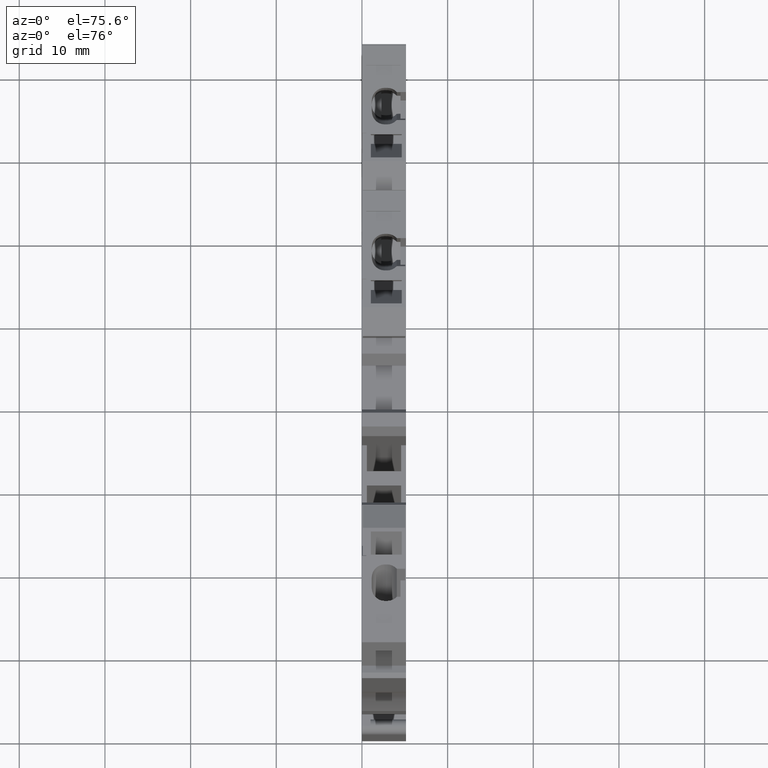
[diagram: clean part render]
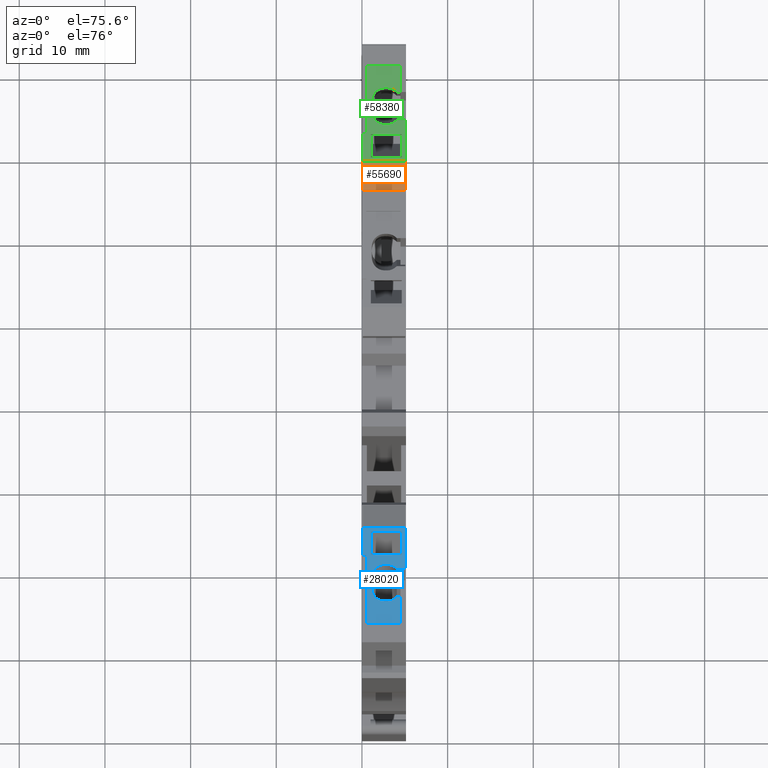
[diagram: same view with three faces highlighted in distinct colors, each labeled with its STEP entity id]
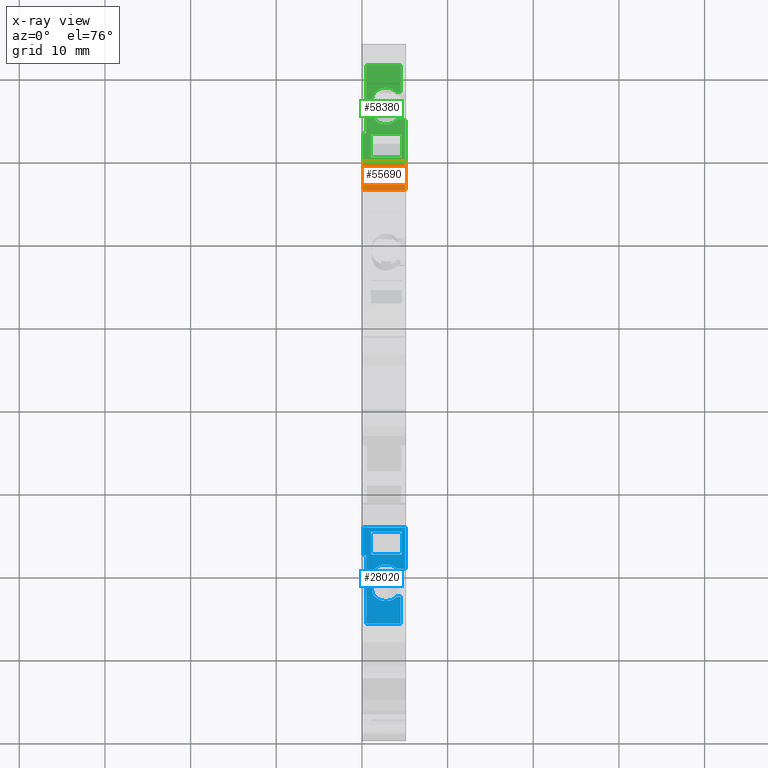
[diagram: x-ray of the same camera — body ghosted, the three highlighted faces saturated]
A machine part, auxiliary view with three faces highlighted in distinct colors.
The next image is the same camera in x-ray (body ghosted, the three faces saturated) — at least one of them is partly hidden behind the body in this view.
Their STEP definitions:

[orange] entity #55690 — the highlighted planar face has unit normal (0, -0.4472, 0.8944).
#54780=CARTESIAN_POINT('',(60.0725221506156,37.5329237893088,
-0.100000000070883));
#54790=VERTEX_POINT('',#54780);
#54870=CARTESIAN_POINT('',(60.0725221506163,37.5329237893103,
-5.05000000007089));
#54880=VERTEX_POINT('',#54870);
#54910=CARTESIAN_POINT('',(60.0725221506156,37.5329237893088,
-7.0857260014668E-11));
#54920=DIRECTION('',(-1.33406774891479E-13,-3.06050203357693E-13,1.));
#54930=VECTOR('',#54920,1.);
#54940=LINE('',#54910,#54930);
#54950=EDGE_CURVE('',#54880,#54790,#54940,.T.);
#55140=CARTESIAN_POINT('',(79.8421183435955,50.6504371315377,
-0.100000000070882));
#55150=DIRECTION('',(0.833258639104385,0.552883387666793,
4.03962154252382E-17));
#55160=VECTOR('',#55150,1.);
#55170=LINE('',#55140,#55160);
#55180=CARTESIAN_POINT('',(62.9605177384253,39.4491652889123,
-0.100000000070883));
#55190=VERTEX_POINT('',#55180);
#55200=EDGE_CURVE('',#54790,#55190,#55170,.T.);
#55460=CARTESIAN_POINT('',(60.0725221506164,37.5329237893106,
-5.96000240012022));
#55470=DIRECTION('',(-0.552883387666793,0.833258639104385,
1.8126058630775E-13));
#55480=DIRECTION('',(0.833258639104385,0.552883387666793,
2.80364169570416E-13));
#55490=AXIS2_PLACEMENT_3D('',#55460,#55470,#55480);
#55500=PLANE('',#55490);
#55510=ORIENTED_EDGE('',*,*,#54950,.T.);
#55520=CARTESIAN_POINT('',(79.8421183435953,50.6504371315386,
-5.05000000007089));
#55530=DIRECTION('',(0.833258639104385,0.552883387666793,
4.03962154252382E-17));
#55540=VECTOR('',#55530,1.);
#55550=LINE('',#55520,#55540);
#55560=CARTESIAN_POINT('',(62.9605177384233,39.4491652889121,
-5.05000000007089));
#55570=VERTEX_POINT('',#55560);
#55580=EDGE_CURVE('',#54880,#55570,#55550,.T.);
#55590=ORIENTED_EDGE('',*,*,#55580,.F.);
#55600=CARTESIAN_POINT('',(62.9605177384253,39.4491652889123,
-7.08571200052082E-11));
#55610=DIRECTION('',(-4.02466479067065E-13,-4.95121708015166E-14,-1.));
#55620=VECTOR('',#55610,1.);
#55630=LINE('',#55600,#55620);
#55640=EDGE_CURVE('',#55190,#55570,#55630,.T.);
#55650=ORIENTED_EDGE('',*,*,#55640,.T.);
#55660=ORIENTED_EDGE('',*,*,#55200,.T.);
#55670=EDGE_LOOP('',(#55660,#55650,#55590,#55510));
#55680=FACE_OUTER_BOUND('',#55670,.T.);
#55690=ADVANCED_FACE('',(#55680),#55500,.T.);

[blue] entity #28020 — the highlighted planar face has unit normal (-0, 0, 1).
#22870=CARTESIAN_POINT('',(11.8583955673319,33.1746136569283,
-4.00000000006426));
#22880=VERTEX_POINT('',#22870);
#22910=CARTESIAN_POINT('',(7.99141046418506E-14,31.7185857641805,
-4.00000000004191));
#22920=DIRECTION('',(-0.992546151641322,-0.121869343405148,
1.8708644239708E-12));
#22930=VECTOR('',#22920,1.);
#22940=LINE('',#22910,#22930);
#22950=CARTESIAN_POINT('',(13.142593792302,33.3322933720935,
-4.00000000006668));
#22960=VERTEX_POINT('',#22950);
#22970=EDGE_CURVE('',#22960,#22880,#22940,.T.);
#23310=CARTESIAN_POINT('',(14.1862185765798,33.4604343829785,
-1.08196601136535));
#23320=VERTEX_POINT('',#23310);
#23350=CARTESIAN_POINT('',(14.1862185765736,33.4604343829777,
-7.09762067052131E-11));
#23360=DIRECTION('',(-1.32212410087243E-12,-1.62428502304682E-13,-1.));
#23370=VECTOR('',#23360,1.);
#23380=LINE('',#23350,#23370);
#23390=CARTESIAN_POINT('',(14.1862185765735,33.4604343829777,
-0.100000000071002));
#23400=VERTEX_POINT('',#23390);
#23410=EDGE_CURVE('',#23400,#23320,#23380,.T.);
#23720=CARTESIAN_POINT('',(14.7080309687015,33.5245048884188,
-2.20000000010822));
#23730=VERTEX_POINT('',#23720);
#23760=CARTESIAN_POINT('',(13.1425937923056,33.332293372094,
-2.20000000010654));
#23770=DIRECTION('',(-0.121869343405148,0.992546151641323,
-8.7278529820656E-17));
#23780=DIRECTION('',(-0.992546151641322,-0.121869343405148,
-1.49847266267518E-12));
#23790=AXIS2_PLACEMENT_3D('',#23760,#23770,#23780);
#23800=ELLIPSE('',#23790,1.57719333635738,1.5);
#23810=EDGE_CURVE('',#23320,#23730,#23800,.T.);
#24050=CARTESIAN_POINT('',(14.7080309687011,33.5245048884188,
-2.50000000006848));
#24060=VERTEX_POINT('',#24050);
#24090=CARTESIAN_POINT('',(14.7080309687044,33.5245048884192,
-7.09761555542491E-11));
#24100=DIRECTION('',(-1.32212410087315E-12,-1.6242850230477E-13,-1.));
#24110=VECTOR('',#24100,1.);
#24120=LINE('',#24090,#24110);
#24130=EDGE_CURVE('',#23730,#24060,#24120,.T.);
#24310=CARTESIAN_POINT('',(13.1425937923052,33.3322933720939,
-2.50000000006668));
#24320=DIRECTION('',(-0.121869343405148,0.992546151641323,
-8.7278529820656E-17));
#24330=DIRECTION('',(-0.992546151641322,-0.121869343405148,
-7.13538422567602E-13));
#24340=AXIS2_PLACEMENT_3D('',#24310,#24320,#24330);
#24350=ELLIPSE('',#24340,1.57719333635738,1.5);
#24360=EDGE_CURVE('',#24060,#22960,#24350,.T.);
#24570=CARTESIAN_POINT('',(7.95834611122292E-14,31.7185857641805,
-0.650000000071009));
#24580=DIRECTION('',(0.992546151641322,0.121869343405148,
9.72949153238301E-17));
#24590=VECTOR('',#24580,1.);
#24600=LINE('',#24570,#24590);
#24610=CARTESIAN_POINT('',(7.62606978573316,32.6549493942367,
-0.650000000071008));
#24620=VERTEX_POINT('',#24610);
#24630=CARTESIAN_POINT('',(10.8433267445325,33.0499788772346,
-0.650000000071008));
#24640=VERTEX_POINT('',#24630);
#24650=EDGE_CURVE('',#24620,#24640,#24600,.T.);
#25140=CARTESIAN_POINT('',(10.8433267445333,33.0499788772347,
-7.09765343941344E-11));
#25150=DIRECTION('',(1.23073790772469E-12,1.51207688706448E-13,1.));
#25160=VECTOR('',#25150,1.);
#25170=LINE('',#25140,#25160);
#25180=CARTESIAN_POINT('',(10.843326744532,33.0499788772346,
-1.08196601135418));
#25190=VERTEX_POINT('',#25180);
#25200=EDGE_CURVE('',#25190,#24640,#25170,.T.);
#25480=CARTESIAN_POINT('',(11.8583955673354,33.1746136569287,
-2.20000000010517));
#25490=DIRECTION('',(-0.121869343405148,0.992546151641323,
-8.7278529820656E-17));
#25500=DIRECTION('',(-0.992546151641322,-0.121869343405148,
-2.82117525802155E-12));
#25510=AXIS2_PLACEMENT_3D('',#25480,#25490,#25500);
#25520=ELLIPSE('',#25510,1.53403771873909,1.5);
#25530=CARTESIAN_POINT('',(10.3357923331282,32.9876614873873,
-2.20000000010354));
#25540=VERTEX_POINT('',#25530);
#25550=EDGE_CURVE('',#25540,#25190,#25520,.T.);
#25790=CARTESIAN_POINT('',(10.335792333131,32.9876614873876,
-7.0976584145491E-11));
#25800=DIRECTION('',(1.23073790772469E-12,1.51207688706448E-13,1.));
#25810=VECTOR('',#25800,1.);
#25820=LINE('',#25790,#25810);
#25830=CARTESIAN_POINT('',(10.3357923331279,32.9876614873872,
-2.50000000006258));
#25840=VERTEX_POINT('',#25830);
#25850=EDGE_CURVE('',#25840,#25540,#25820,.T.);
#26120=CARTESIAN_POINT('',(11.858395567335,33.1746136569287,
-2.50000000006426));
#26130=DIRECTION('',(-0.121869343405148,0.992546151641323,
-8.7278529820656E-17));
#26140=DIRECTION('',(-0.992546151641322,-0.121869343405148,
-2.04868613425906E-12));
#26150=AXIS2_PLACEMENT_3D('',#26120,#26130,#26140);
#26160=ELLIPSE('',#26150,1.53403771873909,1.5);
#26170=EDGE_CURVE('',#22880,#25840,#26160,.T.);
#26370=CARTESIAN_POINT('',(7.95291763536331E-14,31.7185857641805,
-0.100000000071003));
#26380=DIRECTION('',(-0.992546151641322,-0.121869343405148,
-9.72949153238301E-17));
#26390=VECTOR('',#26380,1.);
#26400=LINE('',#26370,#26390);
#26410=CARTESIAN_POINT('',(19.0899778371905,34.0625403105661,
-0.100000000071001));
#26420=VERTEX_POINT('',#26410);
#26430=EDGE_CURVE('',#26420,#23400,#26400,.T.);
#26690=CARTESIAN_POINT('',(19.0899778371905,34.0625403105661,
-7.09757260113519E-11));
#26700=DIRECTION('',(4.0267775597704E-13,4.93505363330952E-14,-1.));
#26710=VECTOR('',#26700,1.);
#26720=LINE('',#26690,#26710);
#26730=CARTESIAN_POINT('',(19.0899778371925,34.0625403105664,
-5.050000000071));
#26740=VERTEX_POINT('',#26730);
#26750=EDGE_CURVE('',#26420,#26740,#26720,.T.);
#27000=CARTESIAN_POINT('',(0.00609346717033973,31.7193339478714,
-5.050000000071));
#27010=DIRECTION('',(0.992546151641322,0.121869343405148,
9.72949153238301E-17));
#27020=VECTOR('',#27010,1.);
#27030=LINE('',#27000,#27020);
#27040=CARTESIAN_POINT('',(15.7882426796912,33.6571382090349,
-5.050000000071));
#27050=VERTEX_POINT('',#27040);
#27060=EDGE_CURVE('',#27050,#26740,#27030,.T.);
#27260=CARTESIAN_POINT('',(6.85214317504415,32.5599231551721,
-2.30546382926592));
#27270=DIRECTION('',(-0.121869343405148,0.992546151641322,
-9.13888059311801E-17));
#27280=DIRECTION('',(-0.992546151641322,-0.121869343405148,
-9.72949153238301E-17));
#27290=AXIS2_PLACEMENT_3D('',#27260,#27270,#27280);
#27300=PLANE('',#27290);
#27310=CARTESIAN_POINT('',(7.99239745979593E-14,31.7185857641805,
-4.10000000005894));
#27320=DIRECTION('',(-0.992546151641322,-0.121869343405148,
1.67096876838704E-12));
#27330=VECTOR('',#27320,1.);
#27340=LINE('',#27310,#27330);
#27350=CARTESIAN_POINT('',(18.649102975499,34.0084076842602,
-4.10000000009034));
#27360=VERTEX_POINT('',#27350);
#27370=CARTESIAN_POINT('',(15.8893799659261,33.6695563063161,
-4.10000000008569));
#27380=VERTEX_POINT('',#27370);
#27390=EDGE_CURVE('',#27360,#27380,#27340,.T.);
#27400=ORIENTED_EDGE('',*,*,#27390,.F.);
#27410=CARTESIAN_POINT('',(15.8893799659313,33.6695563063168,
-7.09760397518247E-11));
#27420=DIRECTION('',(-1.25724097928741E-12,-1.54461856710855E-13,-1.));
#27430=VECTOR('',#27420,1.);
#27440=LINE('',#27410,#27430);
#27450=CARTESIAN_POINT('',(15.8893799659306,33.6695563063167,
-0.500000000085693));
#27460=VERTEX_POINT('',#27450);
#27470=EDGE_CURVE('',#27460,#27380,#27440,.T.);
#27480=ORIENTED_EDGE('',*,*,#27470,.T.);
#27490=CARTESIAN_POINT('',(7.95686561780654E-14,31.7185857641805,
-0.500000000058943));
#27500=DIRECTION('',(-0.992546151641322,-0.121869343405148,
1.67096876838704E-12));
#27510=VECTOR('',#27500,1.);
#27520=LINE('',#27490,#27510);
#27530=CARTESIAN_POINT('',(18.6491029755055,34.008407684261,
-0.500000000090338));
#27540=VERTEX_POINT('',#27530);
#27550=EDGE_CURVE('',#27540,#27460,#27520,.T.);
#27560=ORIENTED_EDGE('',*,*,#27550,.T.);
#27570=CARTESIAN_POINT('',(18.6491029755064,34.0084076842611,
-7.09757692283673E-11));
#27580=DIRECTION('',(1.78876590509757E-12,2.19724911335405E-13,1.));
#27590=VECTOR('',#27580,1.);
#27600=LINE('',#27570,#27590);
#27610=EDGE_CURVE('',#27360,#27540,#27600,.T.);
#27620=ORIENTED_EDGE('',*,*,#27610,.T.);
#27630=EDGE_LOOP('',(#27620,#27560,#27480,#27400));
#27640=FACE_BOUND('',#27630,.T.);
#27650=CARTESIAN_POINT('',(7.62606978573316,32.6549493942367,
-7.09768497676239E-11));
#27660=DIRECTION('',(-9.86995610820599E-17,7.99563376438457E-17,1.));
#27670=VECTOR('',#27660,1.);
#27680=LINE('',#27650,#27670);
#27690=CARTESIAN_POINT('',(7.62606978573316,32.6549493942367,
-4.65000000007103));
#27700=VERTEX_POINT('',#27690);
#27710=EDGE_CURVE('',#27700,#24620,#27680,.T.);
#27720=ORIENTED_EDGE('',*,*,#27710,.T.);
#27730=CARTESIAN_POINT('',(7.9978259356557E-14,31.7185857641805,
-4.65000000007103));
#27740=DIRECTION('',(-0.992546151641322,-0.121869343405148,
-9.72949153238301E-17));
#27750=VECTOR('',#27740,1.);
#27760=LINE('',#27730,#27750);
#27770=CARTESIAN_POINT('',(15.7882426796912,33.6571382090349,
-4.65000000007103));
#27780=VERTEX_POINT('',#27770);
#27790=EDGE_CURVE('',#27780,#27700,#27760,.T.);
#27800=ORIENTED_EDGE('',*,*,#27790,.T.);
#27810=CARTESIAN_POINT('',(15.7882426796912,33.6571382090349,
-7.09760496658662E-11));
#27820=DIRECTION('',(-9.86995610820599E-17,7.99563376438457E-17,1.));
#27830=VECTOR('',#27820,1.);
#27840=LINE('',#27810,#27830);
#27850=EDGE_CURVE('',#27050,#27780,#27840,.T.);
#27860=ORIENTED_EDGE('',*,*,#27850,.T.);
#27870=ORIENTED_EDGE('',*,*,#27060,.F.);
#27880=ORIENTED_EDGE('',*,*,#26750,.T.);
#27890=ORIENTED_EDGE('',*,*,#26430,.F.);
#27900=ORIENTED_EDGE('',*,*,#23410,.F.);
#27910=ORIENTED_EDGE('',*,*,#23810,.F.);
#27920=ORIENTED_EDGE('',*,*,#24130,.F.);
#27930=ORIENTED_EDGE('',*,*,#24360,.F.);
#27940=ORIENTED_EDGE('',*,*,#22970,.F.);
#27950=ORIENTED_EDGE('',*,*,#26170,.F.);
#27960=ORIENTED_EDGE('',*,*,#25850,.F.);
#27970=ORIENTED_EDGE('',*,*,#25550,.F.);
#27980=ORIENTED_EDGE('',*,*,#25200,.F.);
#27990=ORIENTED_EDGE('',*,*,#24650,.T.);
#28000=EDGE_LOOP('',(#27990,#27980,#27970,#27960,#27950,#27940,#27930,
#27920,#27910,#27900,#27890,#27880,#27870,#27860,#27800,#27720));
#28010=FACE_OUTER_BOUND('',#28000,.T.);
#28020=ADVANCED_FACE('',(#27640,#28010),#27300,.T.);

[green] entity #58380 — the highlighted planar face has unit normal (0, 0, -1).
#52250=CARTESIAN_POINT('',(70.1921000082838,40.3370919425505,
-4.00000000006414));
#52260=VERTEX_POINT('',#52250);
#52290=CARTESIAN_POINT('',(70.1921000082807,40.3370919425502,
-2.50000000006414));
#52300=DIRECTION('',(0.121869343405205,-0.992546151641316,
8.26319262671351E-17));
#52310=DIRECTION('',(0.992546151641315,0.121869343405205,
-2.04850235903874E-12));
#52320=AXIS2_PLACEMENT_3D('',#52290,#52300,#52310);
#52330=ELLIPSE('',#52320,1.53403771873909,1.5);
#52340=CARTESIAN_POINT('',(71.7147032424879,40.5240441120917,
-2.50000000007166));
#52350=VERTEX_POINT('',#52340);
#52360=EDGE_CURVE('',#52260,#52350,#52330,.T.);
#52680=CARTESIAN_POINT('',(71.7147032424848,40.5240441120914,
-7.08563572551525E-11));
#52690=DIRECTION('',(-1.23094918463465E-12,-1.51046054238122E-13,1.));
#52700=VECTOR('',#52690,1.);
#52710=LINE('',#52680,#52700);
#52720=CARTESIAN_POINT('',(71.7147032424875,40.5240441120917,
-2.20000000010342));
#52730=VERTEX_POINT('',#52720);
#52740=EDGE_CURVE('',#52350,#52730,#52710,.T.);
#52990=CARTESIAN_POINT('',(70.1921000082804,40.3370919425501,
-2.20000000010505));
#53000=DIRECTION('',(0.121869343405205,-0.992546151641316,
8.26319262671351E-17));
#53010=DIRECTION('',(0.992546151641315,0.121869343405205,
-2.82099148280123E-12));
#53020=AXIS2_PLACEMENT_3D('',#52990,#53000,#53010);
#53030=ELLIPSE('',#53020,1.53403771873909,1.5);
#53040=CARTESIAN_POINT('',(71.2071688310837,40.4617267222443,
-1.08196601136322));
#53050=VERTEX_POINT('',#53040);
#53060=EDGE_CURVE('',#52730,#53050,#53030,.T.);
#53520=CARTESIAN_POINT('',(67.8642769990436,40.0512712165012,
-1.08196601136523));
#53530=VERTEX_POINT('',#53520);
#53560=CARTESIAN_POINT('',(68.9079017833101,40.1794122273848,
-2.20000000010642));
#53570=DIRECTION('',(0.121869343405205,-0.992546151641316,
8.26319262671351E-17));
#53580=DIRECTION('',(0.992546151641315,0.121869343405205,
-1.49828888745486E-12));
#53590=AXIS2_PLACEMENT_3D('',#53560,#53570,#53580);
#53600=ELLIPSE('',#53590,1.57719333635738,1.5);
#53610=CARTESIAN_POINT('',(67.3424646069143,39.9872007110598,
-2.2000000001081));
#53620=VERTEX_POINT('',#53610);
#53630=EDGE_CURVE('',#53530,#53620,#53600,.T.);
#55180=CARTESIAN_POINT('',(62.9605177384253,39.4491652889123,
-0.100000000070883));
#55190=VERTEX_POINT('',#55180);
#55220=CARTESIAN_POINT('',(82.0504955756156,41.793119835299,
-0.100000000070881));
#55230=DIRECTION('',(0.992546151641315,0.121869343405205,
8.64803049957699E-17));
#55240=VECTOR('',#55230,1.);
#55250=LINE('',#55220,#55240);
#55260=CARTESIAN_POINT('',(67.8642769990422,40.051271216501,
-0.100000000070882));
#55270=VERTEX_POINT('',#55260);
#55280=EDGE_CURVE('',#55190,#55270,#55250,.T.);
#55560=CARTESIAN_POINT('',(62.9605177384233,39.4491652889121,
-5.05000000007089));
#55570=VERTEX_POINT('',#55560);
#55600=CARTESIAN_POINT('',(62.9605177384253,39.4491652889123,
-7.08571200052082E-11));
#55610=DIRECTION('',(-4.02466479067065E-13,-4.95121708015166E-14,-1.));
#55620=VECTOR('',#55610,1.);
#55630=LINE('',#55600,#55620);
#55640=EDGE_CURVE('',#55190,#55570,#55630,.T.);
#55880=CARTESIAN_POINT('',(66.2622528959245,39.8545673904437,
-5.05000000007089));
#55890=VERTEX_POINT('',#55880);
#55920=CARTESIAN_POINT('',(82.0444021084453,41.7923716516082,
-5.05000000007089));
#55930=DIRECTION('',(-0.992546151641315,-0.121869343405205,
-8.64803049957699E-17));
#55940=VECTOR('',#55930,1.);
#55950=LINE('',#55920,#55940);
#55960=EDGE_CURVE('',#55890,#55570,#55950,.T.);
#56990=CARTESIAN_POINT('',(74.4244257898825,40.8567562052425,
-7.08561211576855E-11));
#57000=DIRECTION('',(-1.12577348889874E-16,8.16781307540979E-17,1.));
#57010=VECTOR('',#57000,1.);
#57020=LINE('',#56990,#57010);
#57030=CARTESIAN_POINT('',(74.4244257898825,40.8567562052424,
-4.65000000007091));
#57040=VERTEX_POINT('',#57030);
#57050=CARTESIAN_POINT('',(74.4244257898825,40.8567562052424,
-0.650000000070888));
#57060=VERTEX_POINT('',#57050);
#57070=EDGE_CURVE('',#57040,#57060,#57020,.T.);
#57320=CARTESIAN_POINT('',(75.1983524005716,40.951782444307,
-2.30546382926581));
#57330=DIRECTION('',(0.121869343405205,-0.992546151641315,
9.47890419447437E-17));
#57340=DIRECTION('',(0.992546151641315,0.121869343405205,
8.64803049957699E-17));
#57350=AXIS2_PLACEMENT_3D('',#57320,#57330,#57340);
#57360=PLANE('',#57350);
#57370=CARTESIAN_POINT('',(63.4013926001094,39.5032979152174,
-7.08570815918886E-11));
#57380=DIRECTION('',(-1.78897718200753E-12,-2.19563276867111E-13,1.));
#57390=VECTOR('',#57380,1.);
#57400=LINE('',#57370,#57390);
#57410=CARTESIAN_POINT('',(63.4013926001168,39.5032979152183,
-4.10000000009022));
#57420=VERTEX_POINT('',#57410);
#57430=CARTESIAN_POINT('',(63.4013926001103,39.5032979152175,
-0.50000000009022));
#57440=VERTEX_POINT('',#57430);
#57450=EDGE_CURVE('',#57420,#57440,#57400,.T.);
#57460=ORIENTED_EDGE('',*,*,#57450,.F.);
#57470=CARTESIAN_POINT('',(82.0504955756156,41.793119835299,
-0.500000000058821));
#57480=DIRECTION('',(0.992546151641315,0.121869343405205,
1.67115254360736E-12));
#57490=VECTOR('',#57480,1.);
#57500=LINE('',#57470,#57490);
#57510=CARTESIAN_POINT('',(66.1611156096851,39.8421492931619,
-0.500000000085574));
#57520=VERTEX_POINT('',#57510);
#57530=EDGE_CURVE('',#57440,#57520,#57500,.T.);
#57540=ORIENTED_EDGE('',*,*,#57530,.F.);
#57550=CARTESIAN_POINT('',(66.1611156096845,39.8421492931618,
-7.08568411378934E-11));
#57560=DIRECTION('',(1.25745225619737E-12,1.5430022224253E-13,-1.));
#57570=VECTOR('',#57560,1.);
#57580=LINE('',#57550,#57570);
#57590=CARTESIAN_POINT('',(66.1611156096896,39.8421492931625,
-4.10000000008558));
#57600=VERTEX_POINT('',#57590);
#57610=EDGE_CURVE('',#57520,#57600,#57580,.T.);
#57620=ORIENTED_EDGE('',*,*,#57610,.F.);
#57630=CARTESIAN_POINT('',(82.0504955756156,41.793119835299,
-4.10000000005882));
#57640=DIRECTION('',(0.992546151641315,0.121869343405205,
1.67115254360736E-12));
#57650=VECTOR('',#57640,1.);
#57660=LINE('',#57630,#57650);
#57670=EDGE_CURVE('',#57420,#57600,#57660,.T.);
#57680=ORIENTED_EDGE('',*,*,#57670,.T.);
#57690=EDGE_LOOP('',(#57680,#57620,#57540,#57460));
#57700=FACE_BOUND('',#57690,.T.);
#57710=CARTESIAN_POINT('',(82.0504955756156,41.793119835299,
-0.650000000070887));
#57720=DIRECTION('',(-0.992546151641315,-0.121869343405205,
-8.64803049957699E-17));
#57730=VECTOR('',#57720,1.);
#57740=LINE('',#57710,#57730);
#57750=CARTESIAN_POINT('',(71.2071688310832,40.4617267222443,
-0.650000000070888));
#57760=VERTEX_POINT('',#57750);
#57770=EDGE_CURVE('',#57060,#57760,#57740,.T.);
#57780=ORIENTED_EDGE('',*,*,#57770,.F.);
#57790=CARTESIAN_POINT('',(71.2071688310824,40.4617267222442,
-7.08564014765025E-11));
#57800=DIRECTION('',(-1.23094918463465E-12,-1.51046054238122E-13,1.));
#57810=VECTOR('',#57800,1.);
#57820=LINE('',#57790,#57810);
#57830=EDGE_CURVE('',#53050,#57760,#57820,.T.);
#57840=ORIENTED_EDGE('',*,*,#57830,.T.);
#57850=ORIENTED_EDGE('',*,*,#53060,.T.);
#57860=ORIENTED_EDGE('',*,*,#52740,.T.);
#57870=ORIENTED_EDGE('',*,*,#52360,.T.);
#57880=CARTESIAN_POINT('',(82.0504955756156,41.793119835299,
-4.00000000004179));
#57890=DIRECTION('',(0.992546151641315,0.121869343405205,
1.87104819919112E-12));
#57900=VECTOR('',#57890,1.);
#57910=LINE('',#57880,#57900);
#57920=CARTESIAN_POINT('',(68.9079017833137,40.1794122273852,
-4.00000000006656));
#57930=VERTEX_POINT('',#57920);
#57940=EDGE_CURVE('',#57930,#52260,#57910,.T.);
#57950=ORIENTED_EDGE('',*,*,#57940,.T.);
#57960=CARTESIAN_POINT('',(68.9079017833105,40.1794122273849,
-2.50000000006656));
#57970=DIRECTION('',(0.121869343405205,-0.992546151641316,
8.26319262671351E-17));
#57980=DIRECTION('',(0.992546151641315,0.121869343405205,
-7.13354647347282E-13));
#57990=AXIS2_PLACEMENT_3D('',#57960,#57970,#57980);
#58000=ELLIPSE('',#57990,1.57719333635738,1.5);
#58010=CARTESIAN_POINT('',(67.3424646069147,39.9872007110599,
-2.50000000006836));
#58020=VERTEX_POINT('',#58010);
#58030=EDGE_CURVE('',#58020,#57930,#58000,.T.);
#58040=ORIENTED_EDGE('',*,*,#58030,.T.);
#58050=CARTESIAN_POINT('',(67.3424646069114,39.9872007110595,
-7.08567382072424E-11));
#58060=DIRECTION('',(1.32233537778311E-12,1.62266867836449E-13,-1.));
#58070=VECTOR('',#58060,1.);
#58080=LINE('',#58050,#58070);
#58090=EDGE_CURVE('',#53620,#58020,#58080,.T.);
#58100=ORIENTED_EDGE('',*,*,#58090,.T.);
#58110=ORIENTED_EDGE('',*,*,#53630,.T.);
#58120=CARTESIAN_POINT('',(67.8642769990421,40.051271216501,
-7.08566927418555E-11));
#58130=DIRECTION('',(1.3223353777824E-12,1.62266867836361E-13,-1.));
#58140=VECTOR('',#58130,1.);
#58150=LINE('',#58120,#58140);
#58160=EDGE_CURVE('',#55270,#53530,#58150,.T.);
#58170=ORIENTED_EDGE('',*,*,#58160,.T.);
#58180=ORIENTED_EDGE('',*,*,#55280,.T.);
#58190=ORIENTED_EDGE('',*,*,#55640,.F.);
#58200=ORIENTED_EDGE('',*,*,#55960,.T.);
#58210=CARTESIAN_POINT('',(66.2622528959245,39.8545673904437,
-7.08568323258263E-11));
#58220=DIRECTION('',(-1.12577348889874E-16,8.16781307540979E-17,1.));
#58230=VECTOR('',#58220,1.);
#58240=LINE('',#58210,#58230);
#58250=CARTESIAN_POINT('',(66.2622528959245,39.8545673904437,
-4.65000000007091));
#58260=VERTEX_POINT('',#58250);
#58270=EDGE_CURVE('',#55890,#58260,#58240,.T.);
#58280=ORIENTED_EDGE('',*,*,#58270,.F.);
#58290=CARTESIAN_POINT('',(82.0504955756156,41.793119835299,
-4.65000000007091));
#58300=DIRECTION('',(0.992546151641315,0.121869343405205,
8.64803049957699E-17));
#58310=VECTOR('',#58300,1.);
#58320=LINE('',#58290,#58310);
#58330=EDGE_CURVE('',#58260,#57040,#58320,.T.);
#58340=ORIENTED_EDGE('',*,*,#58330,.F.);
#58350=ORIENTED_EDGE('',*,*,#57070,.F.);
#58360=EDGE_LOOP('',(#58350,#58340,#58280,#58200,#58190,#58180,#58170,
#58110,#58100,#58040,#57950,#57870,#57860,#57850,#57840,#57780));
#58370=FACE_OUTER_BOUND('',#58360,.T.);
#58380=ADVANCED_FACE('',(#57700,#58370),#57360,.F.);